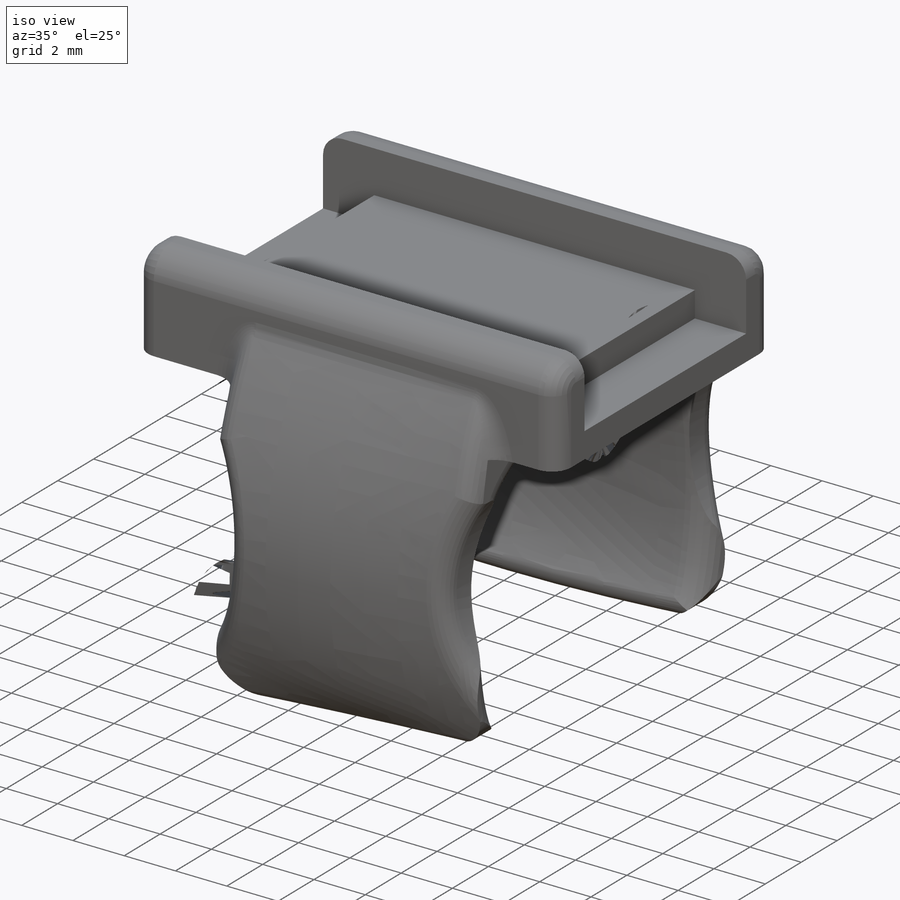
[diagram: iso view]
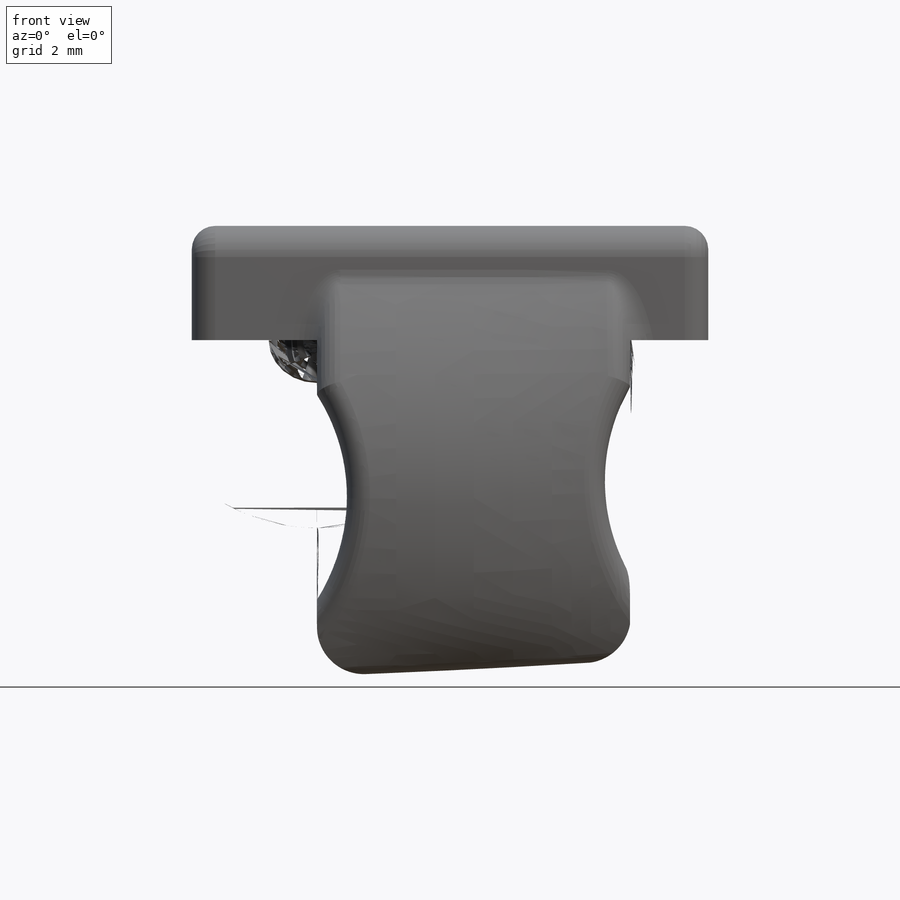
[diagram: front view]
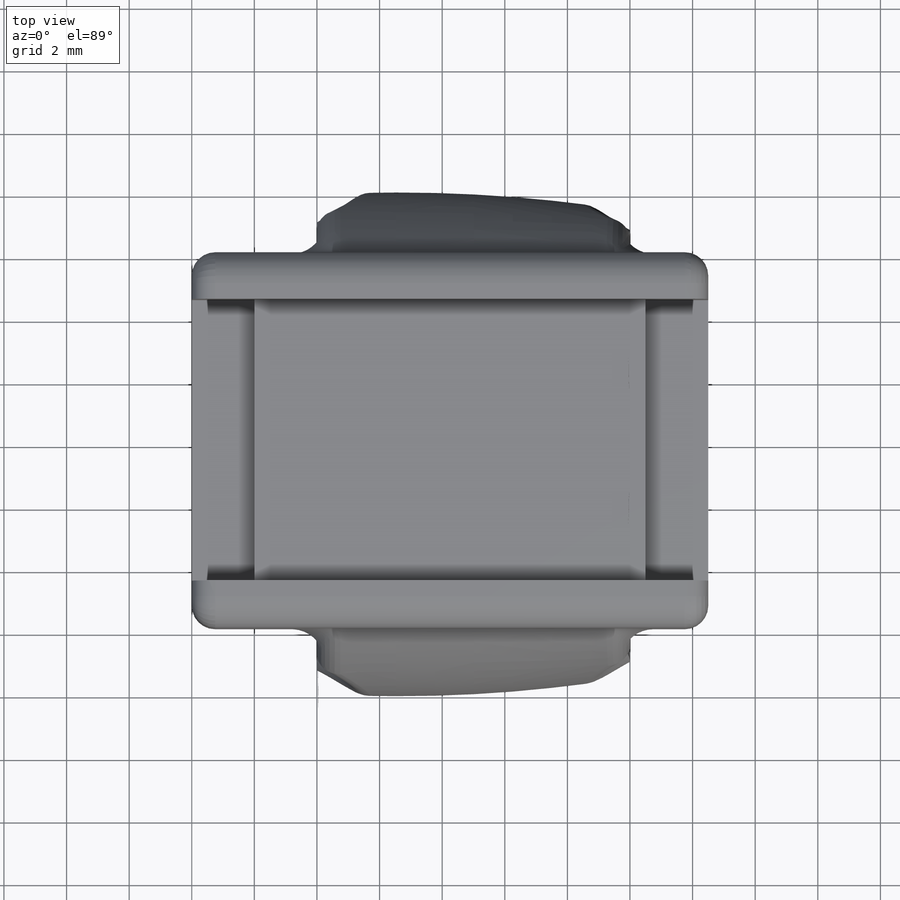
[diagram: top view]
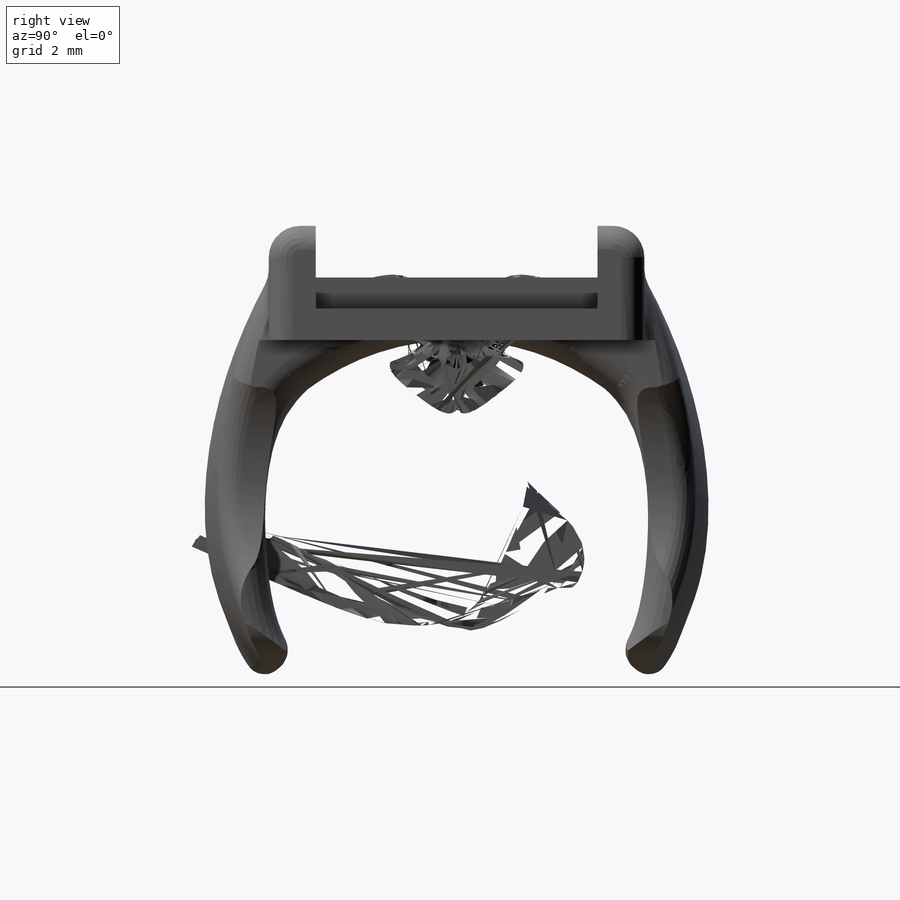
[diagram: right view]
SOLIDWORKS PART (.sldprt)
format: sldprt  version: not decoded by parser v0  size: 1,066,496 bytes
history: native  units: mm
features: sketch x8, fillet x7, cut_extrude x3, plane x2, extrude x2, material x1 (+13 scaffold rows collapsed)
feature tree (36):
  scaffold x13  (default folders/planes/origin — collapsed)
  material  "ABS"
  sketch  "Sketch2"  dims[c1.D3=9.5mm c1.D7=~5.264952mm c1.D1=6.0mm c1.D2=2.0mm c1.D4=8.0mm c1.D5=3.0mm c1.D6=5.8mm c2.D7=~7.141428mm c2.D5=6.0mm c3.D7=6.75mm c3.D8=1.0mm c3.D4=10.0mm]
  plane  "Plane1"  Offset=5mm
  sketch  "Sketch3"  dims[c1.D1=8.0mm c1.D8=~3.348565mm c1.D2=12.0mm c1.D3=6.0mm c1.D4=1.0mm c1.D5=9.75mm c1.D6=5.5mm c1.D7=4.75mm c2.D8=~2.33428mm c2.D3=6.25mm c3.D8=~4.877392mm]
  plane  "Plane2"  Offset=10mm
  sketch  "Sketch4"  dims[c1.D1=9.0mm c1.D2=9.5mm c1.D3=1.0mm c1.D4=5.75mm c1.D5=5.5mm c1.D6=2.0mm c1.D7=12.0mm c1.D8=6.0mm c2.D4=5.25mm c2.D8=6.125mm]
  sketch  "Sketch10"  dims[D1=2.0mm]
  extrude  "Boss-Extrude3"  Depth=7.5mm
  sketch  "Sketch12"  dims[D1=9.0mm]
  extrude  "Boss-Extrude4"  Depth=1.65mm
  sketch  "Sketch13"  dims[c1.D1=6.0mm c1.D6=1.5mm c1.D2=6.5mm c1.D3=5.0mm c1.D4=6.0mm c2.D3=5.0mm c2.D5=4.5mm]
  cut_extrude  "Cut-Extrude1"  Depth=1.65mm
  sketch  "Sketch14"  dims[D1=2.0mm D2=2.0mm]
  cut_extrude  "Cut-Extrude2"  Depth=1mm
  sketch  "Sketch7"  dims[c1.D6=3.0mm c1.D7=2.0mm c2.D6=3.0mm c2.D1=3.0mm c2.D2=3.0mm c2.D3=2.0mm c2.D4=6.0mm c2.D5=5.75mm c3.D1=3.0mm]
  cut_extrude  "SideCuts"  Depth=18mm
  fillet  "Fillet1"  Radius=1mm
  fillet  "Fillet2"  Radius=1mm
  fillet  "Fillet3"  Radius=0.75mm
  fillet  "Fillet7"  Radius=1mm
  fillet  "Fillet9"  Radius=0.75mm
  fillet  "Fillet10"  Radius=0.75mm
  fillet  "Fillet11"  Radius=1mm
decode coverage: 20 of 20 modeling features carry decoded parameters
note: ~ marks probable driven/reference dimensions
note: suppression state not decoded; provenance and decode notes live in map.json
